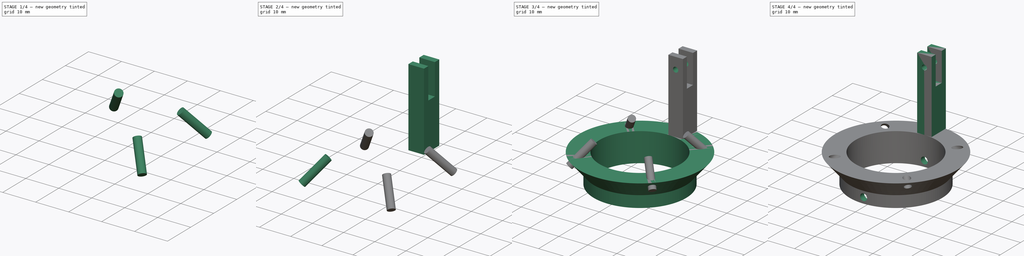
[diagram: build sequence overview — one tinted view per stage of 4, left to right]
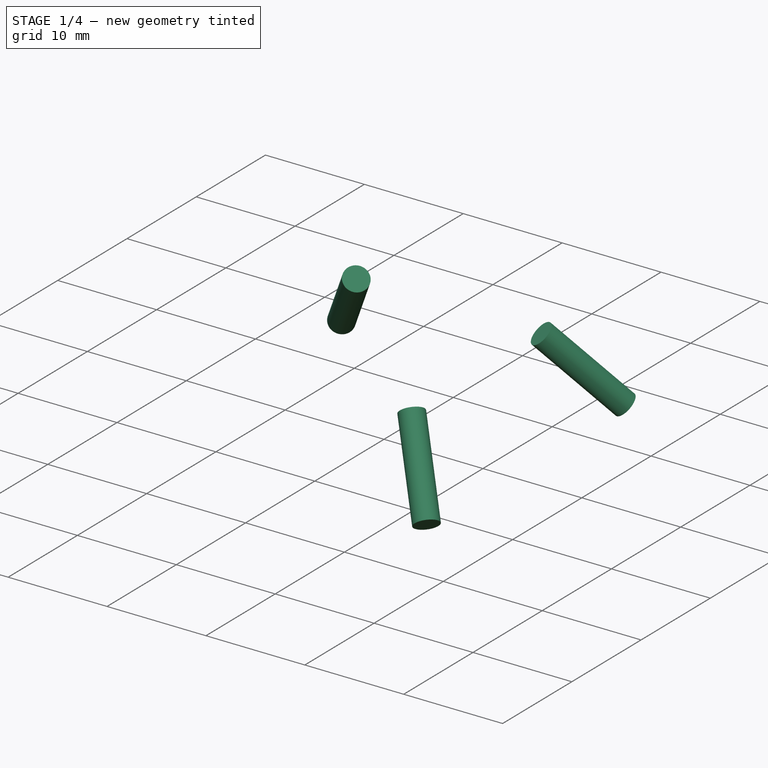
[diagram: stage 1 of 4 — iso view after this stage's code; geometry added in this stage tinted green]
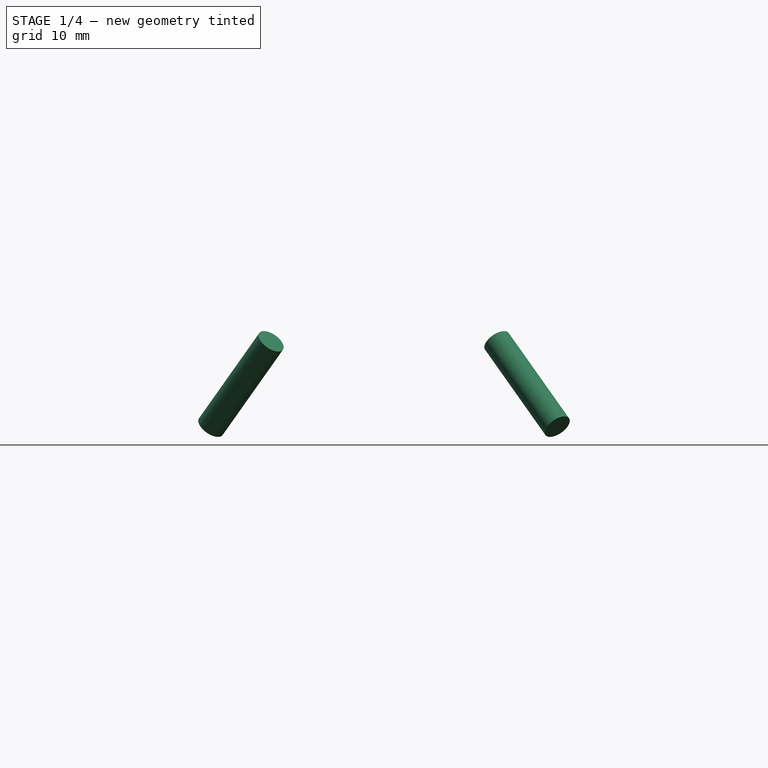
[diagram: stage 1 of 4 — front view after this stage's code; geometry added in this stage tinted green]
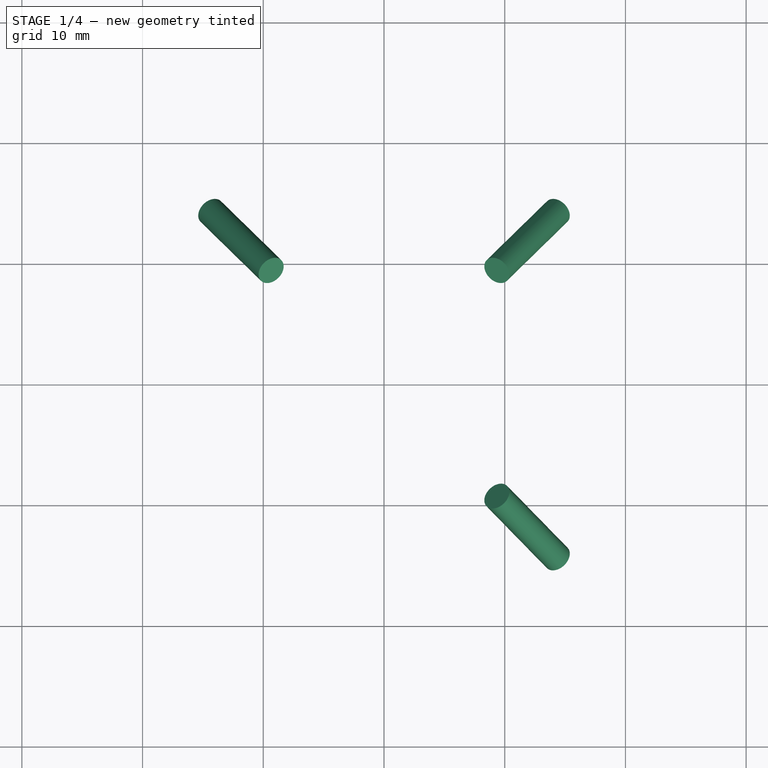
[diagram: stage 1 of 4 — top view after this stage's code; geometry added in this stage tinted green]
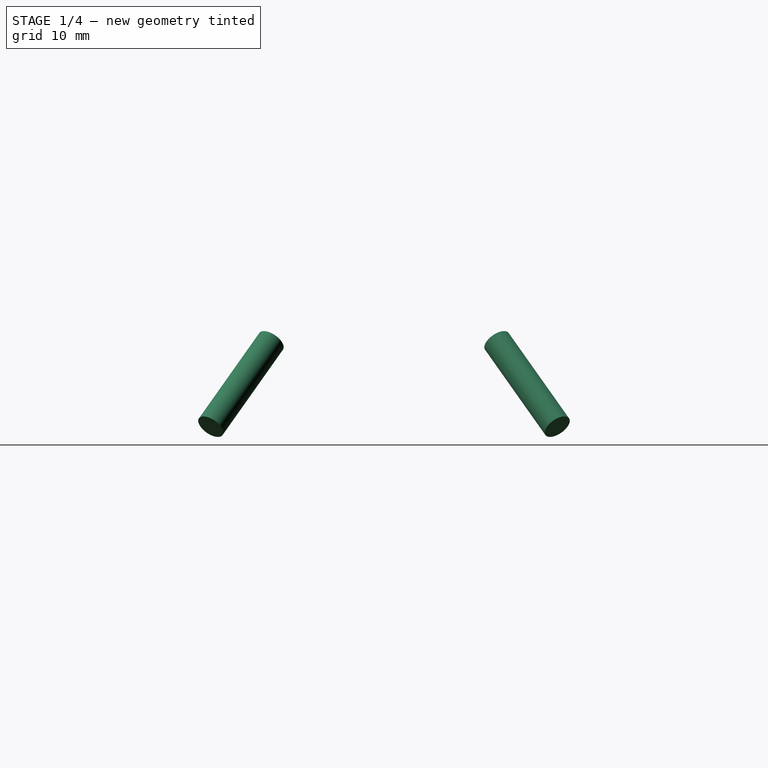
[diagram: stage 1 of 4 — right view after this stage's code; geometry added in this stage tinted green]
FCSTD DOCUMENT  (FreeCAD 0.18R4 (GitTag))
Label: holder4
License: All rights reserved
LicenseURL: http://en.wikipedia.org/wiki/All_rights_reserved
objects: Sketcher::SketchObject×4, Part::Cylinder×4, PartDesign::Pocket×2, PartDesign::Body×2, PartDesign::Revolution×1, PartDesign::Pad×1, Part::Fuse×1, Part::MultiFuse×1, Part::Cut×1
note: 21 computed .brp shape members not serialized (recipe doc carries the construction recipe); baked Part::Feature solids carry a one-line shape summary decoded from their .brp

FEATURE [Part::Cylinder] Cylinder001
  Angle = 360
  AttacherType = Attacher::AttachEngine3D
  Height = 10
  Placement = pos=(14.3492,-14.3492,7.29289) rot=(-0.678598,-0.281085,0.678598;1.09606rad)
  Radius = 1.2
FEATURE [Part::Cylinder] Cylinder002
  Angle = 360
  AttacherType = Attacher::AttachEngine3D
  Height = 10
  Placement = pos=(14.3492,14.3492,7.29289) rot=(0.678598,-0.281085,-0.678598;1.09606rad)
  Radius = 1.2
FEATURE [Part::Cylinder] Cylinder003
  Angle = 360
  AttacherType = Attacher::AttachEngine3D
  Height = 10
  Placement = pos=(-14.3492,14.3492,7.29289) rot=(0.678598,0.281085,0.678598;1.09606rad)
  Radius = 1.2
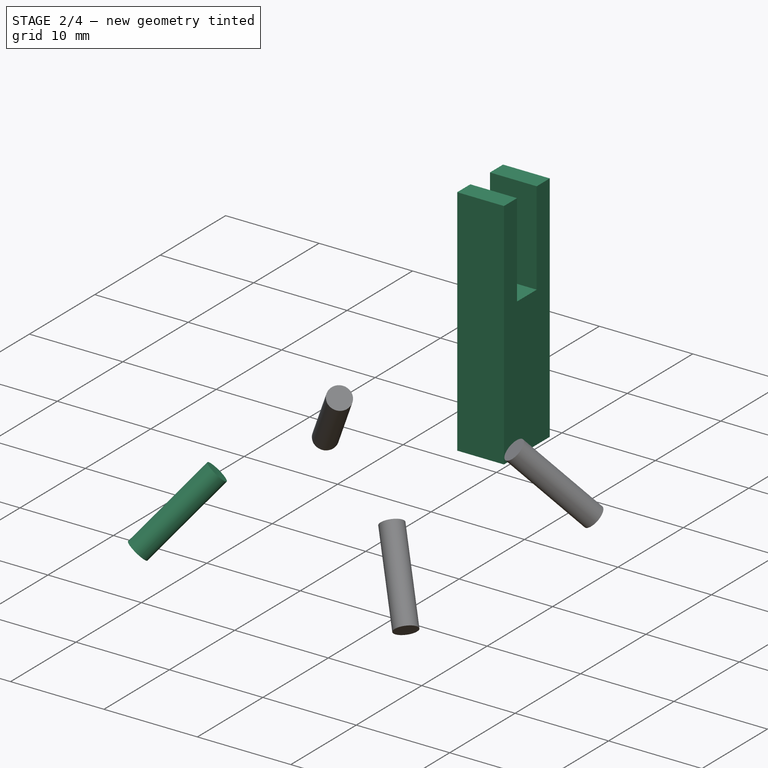
[diagram: stage 2 of 4 — iso view after this stage's code; geometry added in this stage tinted green]
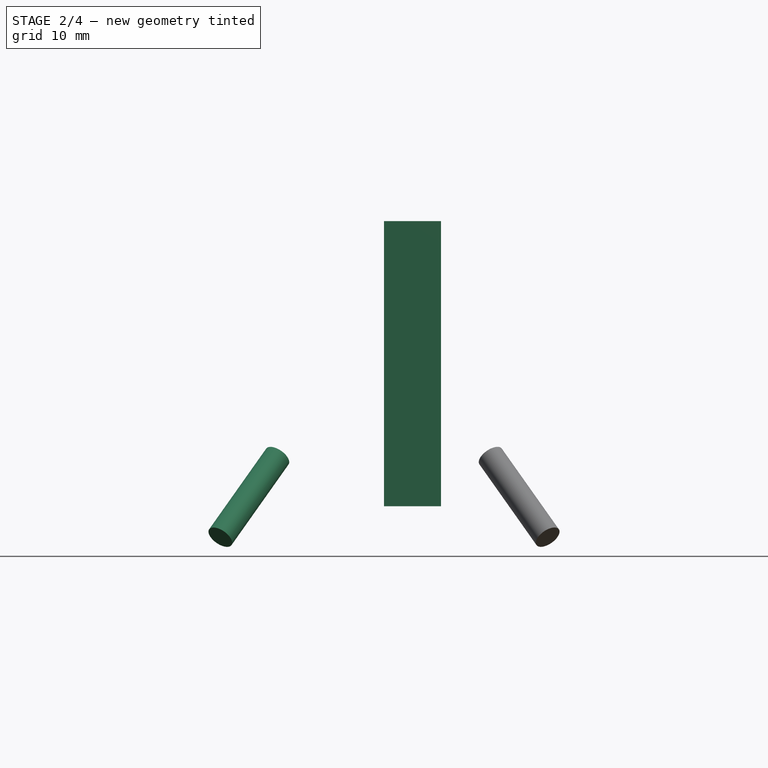
[diagram: stage 2 of 4 — front view after this stage's code; geometry added in this stage tinted green]
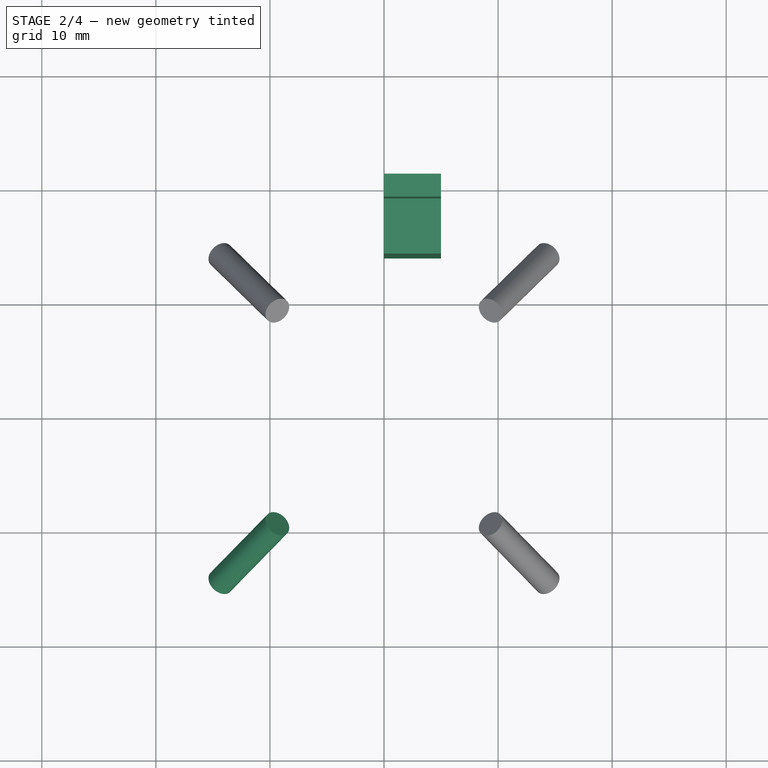
[diagram: stage 2 of 4 — top view after this stage's code; geometry added in this stage tinted green]
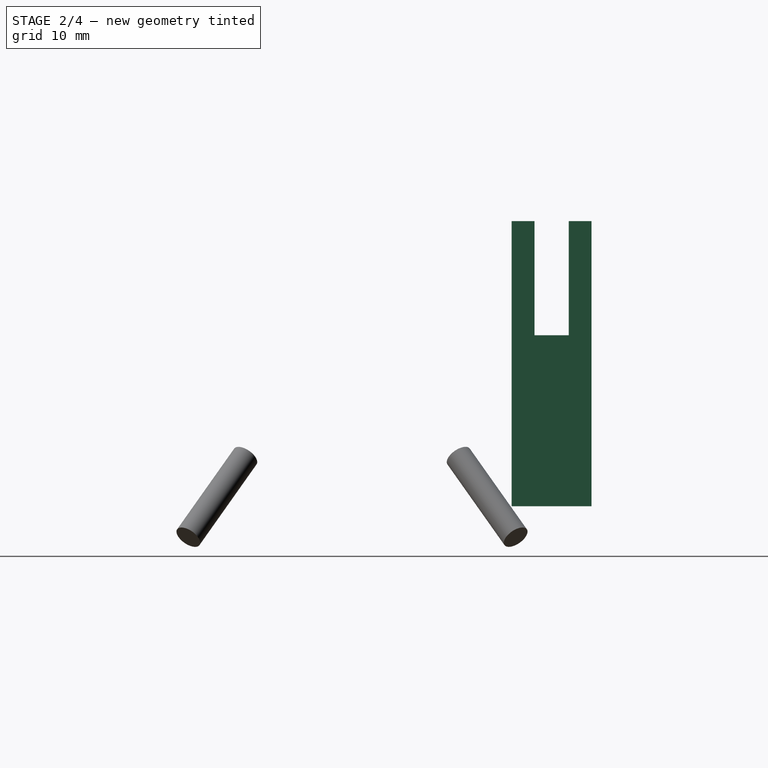
[diagram: stage 2 of 4 — right view after this stage's code; geometry added in this stage tinted green]
FEATURE [PartDesign::Body] Body
  Group = -> [Sketch,Revolution,Sketch001,Pocket]
  Origin = -> Origin
  Tip = -> Pocket
FEATURE [Sketcher::SketchObject] Sketch002
  MapMode = 5
  Placement = pos=(0,0,0) rot=(0.57735,0.57735,0.57735;2.0944rad)
  Support = -> [YZ_Plane001]
  sketch-geometry (8):
    g0: LineSegment StartX=14 StartY=10 StartZ=0 EndX=14 EndY=35 EndZ=0
    g1: LineSegment StartX=14 StartY=35 StartZ=0 EndX=16 EndY=35 EndZ=0
    g2: LineSegment StartX=16 StartY=35 StartZ=0 EndX=16 EndY=25 EndZ=0
    g3: LineSegment StartX=16 StartY=25 StartZ=0 EndX=19 EndY=25 EndZ=0
    g4: LineSegment StartX=19 StartY=25 StartZ=0 EndX=19 EndY=35 EndZ=0
    g5: LineSegment StartX=19 StartY=35 StartZ=0 EndX=21 EndY=35 EndZ=0
    g6: LineSegment StartX=21 StartY=35 StartZ=0 EndX=21 EndY=10 EndZ=0
    g7: LineSegment StartX=21 StartY=10 StartZ=0 EndX=14 EndY=10 EndZ=0
  constraints (24):
    c: Coincident(g0,g1)
    c: Coincident(g1,g2)
    c: Coincident(g2,g3)
    c: Coincident(g3,g4)
    c: Coincident(g4,g5)
    c: Coincident(g5,g6)
    c: Coincident(g6,g7)
    c: Coincident(g7,g0)
    c: Vertical(g0)
    c: Vertical(g2)
    c: Vertical(g4)
    c: Vertical(g6)
    c: Horizontal(g5)
    c: Horizontal(g3)
    c: Horizontal(g1)
    c: Horizontal(g7)
    c: Equal(g6,g0)
    c: DistanceY(g6,g6) = 25
    c: DistanceY(g4,g4) = 10
    c: Equal(g1,g5)
    c: DistanceX(g5,g5) = 2
    c: DistanceX(g3,g3) = 3
    c: DistanceY(g-1,g0) = 10
    c: DistanceX(g-1,g6) = 21
FEATURE [PartDesign::Pad] Pad
  Length = 5
  Length2 = 100
  Placement = pos=(0,0,0) rot=(0.57735,0.57735,0.57735;2.0944rad)
  Profile = -> Sketch002
  Type = 0
FEATURE [Part::Cylinder] Cylinder
  Angle = 360
  AttacherType = Attacher::AttachEngine3D
  Height = 10
  Placement = pos=(-14.3492,-14.3492,7.29289) rot=(-0.678598,0.281085,-0.678598;1.09606rad)
  Radius = 1.2
FEATURE [Part::MultiFuse] Fusion001
  Shapes = -> [Cylinder,Cylinder001,Cylinder002,Cylinder003]
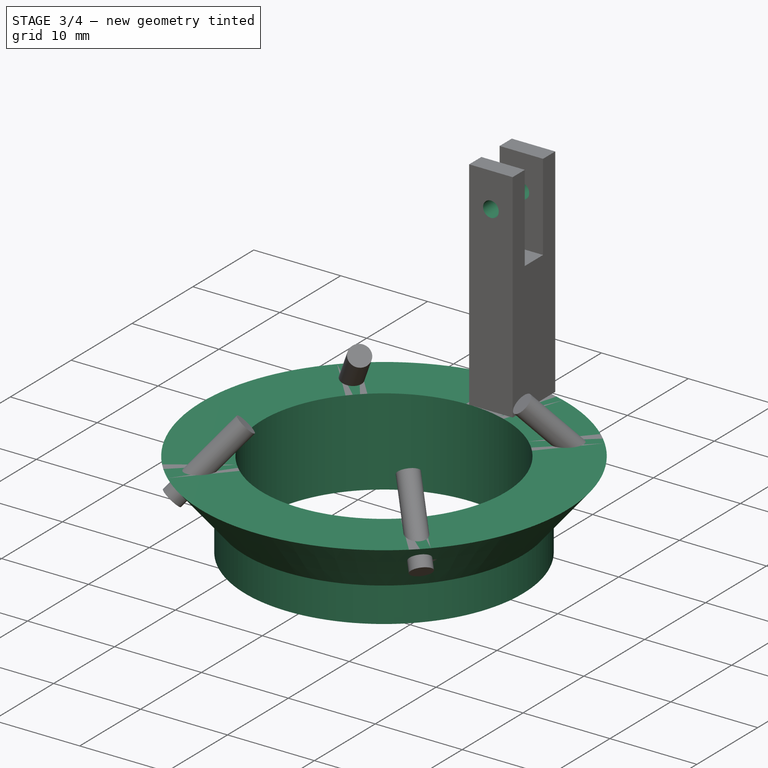
[diagram: stage 3 of 4 — iso view after this stage's code; geometry added in this stage tinted green]
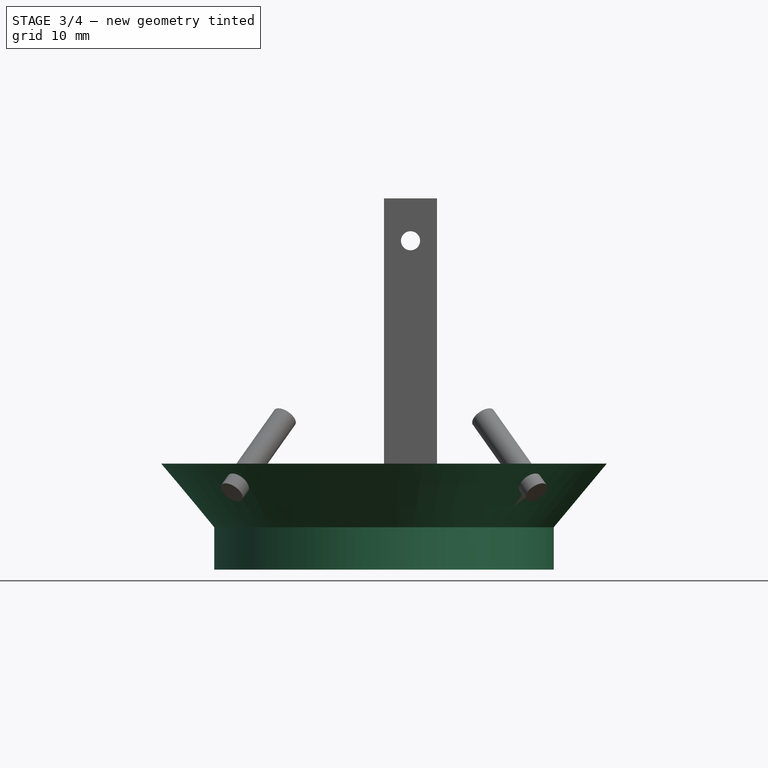
[diagram: stage 3 of 4 — front view after this stage's code; geometry added in this stage tinted green]
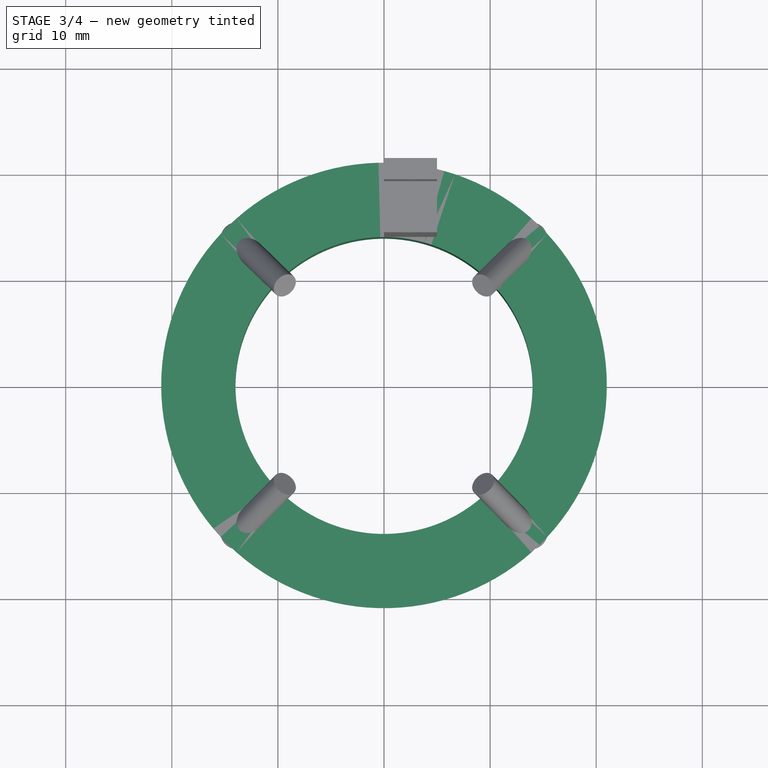
[diagram: stage 3 of 4 — top view after this stage's code; geometry added in this stage tinted green]
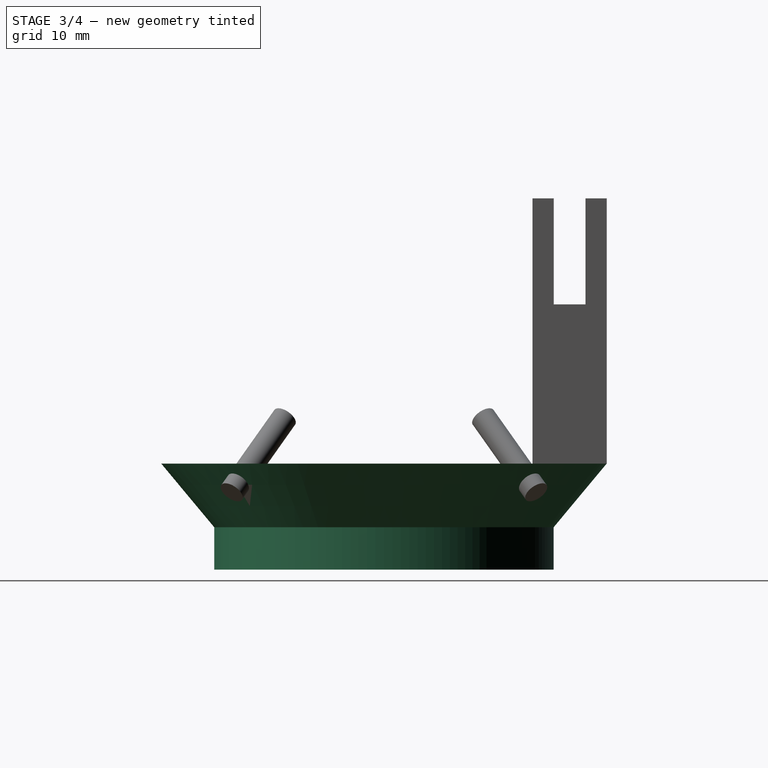
[diagram: stage 3 of 4 — right view after this stage's code; geometry added in this stage tinted green]
FEATURE [Sketcher::SketchObject] Sketch
  MapMode = 5
  Placement = pos=(0,0,0) rot=(1,0,0;1.5708rad)
  Support = -> [XZ_Plane]
  sketch-geometry (5):
    g0: LineSegment StartX=16 StartY=4 StartZ=0 EndX=16 EndY=0 EndZ=0
    g1: LineSegment StartX=16 StartY=0 StartZ=0 EndX=14 EndY=0 EndZ=0
    g2: LineSegment StartX=14 StartY=0 StartZ=0 EndX=14 EndY=10 EndZ=0
    g3: LineSegment StartX=14 StartY=10 StartZ=0 EndX=21 EndY=10 EndZ=0
    g4: LineSegment StartX=21 StartY=10 StartZ=0 EndX=16 EndY=4 EndZ=0
  constraints (15):
    c: Coincident(g0,g1)
    c: Coincident(g1,g2)
    c: Horizontal(g1)
    c: Vertical(g0)
    c: Vertical(g2)
    c: DistanceX(g1,g1) = 2
    c: DistanceY(g2,g2) = 10
    c: Horizontal(g1,g-1)
    c: DistanceX(g-1,g1) = 14
    c: DistanceY(g0,g0) = 4
    c: Coincident(g3,g4)
    c: Coincident(g2,g3)
    c: Coincident(g0,g4)
    c: Horizontal(g3)
    c: DistanceX(g3,g3) = 7
FEATURE [PartDesign::Revolution] Revolution
  Angle = 360
  Axis = (0,-2e-16,1)
  Base = (0,0,0)
  Placement = pos=(0,0,0) rot=(1,0,0;1.5708rad)
  Profile = -> Sketch
  ReferenceAxis = -> Sketch [V_Axis]
  Reversed = true
FEATURE [Sketcher::SketchObject] Sketch003
  ExternalGeometry = -> [Pad]
  MapMode = 5
  Placement = pos=(6.2e-15,14,-4.7e-15) rot=(-0.57735,-0.57735,0.57735;4.18879rad)
  Support = -> [Pad]
  sketch-geometry (1):
    g0: Circle CenterX=-31 CenterY=2.5 CenterZ=0 NormalX=0 NormalY=0 NormalZ=1 AngleXU=0 Radius=0.9
  constraints (3):
    c: Radius(g0) = 0.9
    c: DistanceX(g-3,g0) = 4
    c: DistanceY(g-3,g0) = 2.5
FEATURE [PartDesign::Pocket] Pocket001
  BaseFeature = -> Pad
  Length = 5
  Length2 = 100
  Placement = pos=(0,0,0) rot=(0.57735,0.57735,0.57735;2.0944rad)
  Profile = -> Sketch003
  Type = 1
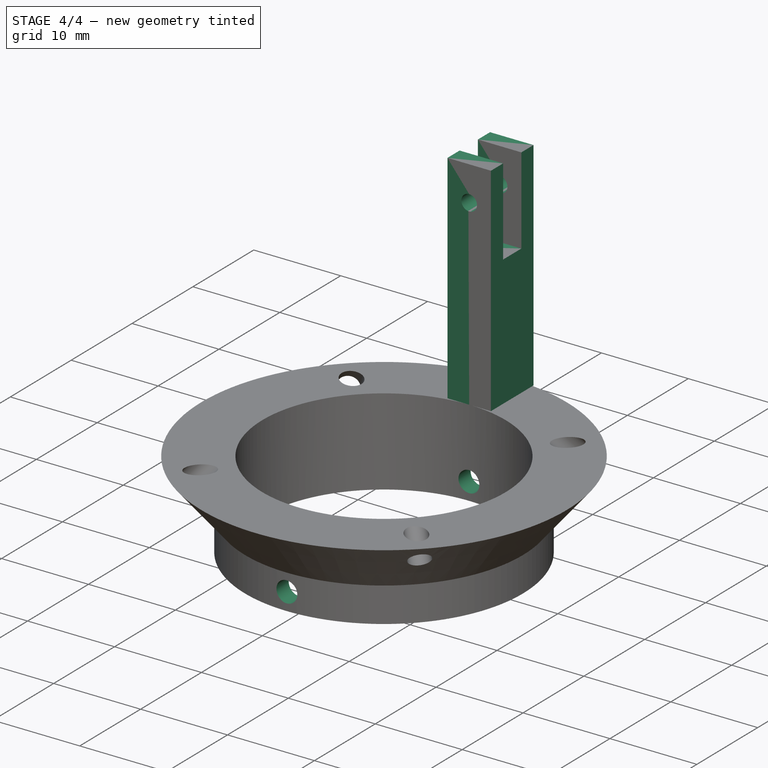
[diagram: stage 4 of 4 — iso view after this stage's code; geometry added in this stage tinted green]
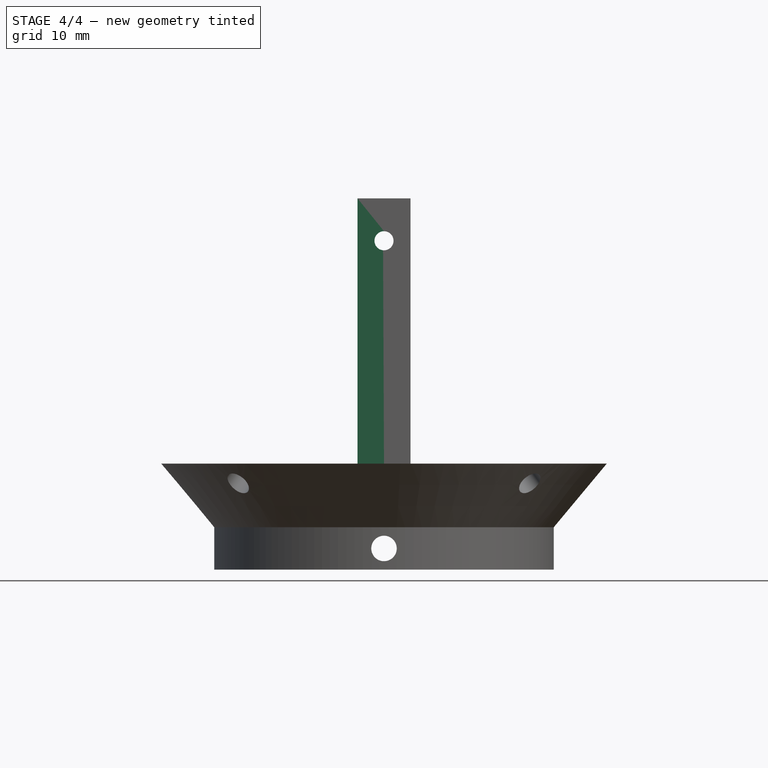
[diagram: stage 4 of 4 — front view after this stage's code; geometry added in this stage tinted green]
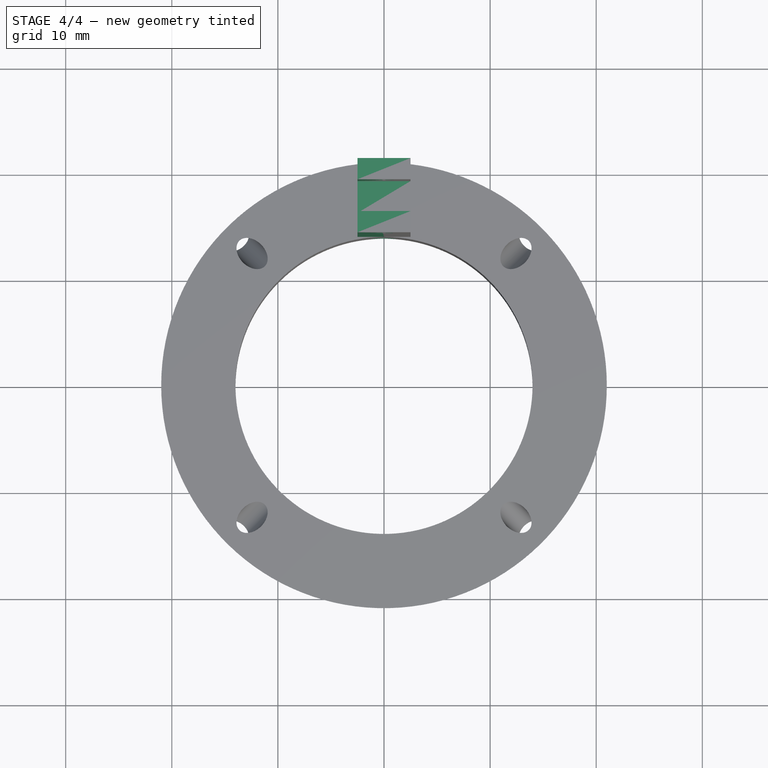
[diagram: stage 4 of 4 — top view after this stage's code; geometry added in this stage tinted green]
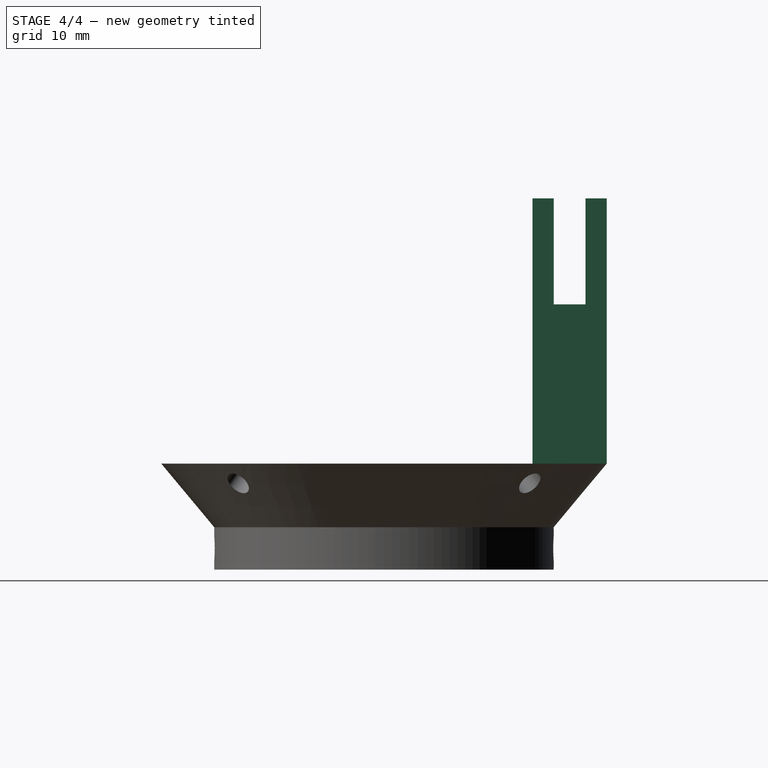
[diagram: stage 4 of 4 — right view after this stage's code; geometry added in this stage tinted green]
FEATURE [Sketcher::SketchObject] Sketch001
  AttachmentOffset = pos=(0,0,17) rot=(0,0,1;0rad)
  MapMode = 5
  Placement = pos=(0,-17,4e-15) rot=(1,0,0;1.5708rad)
  sketch-geometry (1):
    g0: Circle CenterX=0 CenterY=2 CenterZ=0 NormalX=0 NormalY=0 NormalZ=1 AngleXU=0 Radius=1.2
  constraints (3):
    c: Vertical(g0,g-1)
    c: Radius(g0) = 1.2
    c: DistanceY(g-1,g0) = 2
FEATURE [PartDesign::Pocket] Pocket
  BaseFeature = -> Revolution
  Length = 5
  Length2 = 100
  Placement = pos=(0,0,0) rot=(1,0,0;1.5708rad)
  Profile = -> Sketch001
  Type = 1
FEATURE [PartDesign::Body] Body001
  Group = -> [Sketch002,Pad,Sketch003,Pocket001]
  Origin = -> Origin001
  Placement = pos=(-2.5,0,0) rot=(0,0,1;0rad)
  Tip = -> Pocket001
FEATURE [Part::Fuse] Fusion
  Base = -> Body
  Tool = -> Body001
FEATURE [Part::Cut] Cut
  Base = -> Fusion
  Tool = -> Fusion001
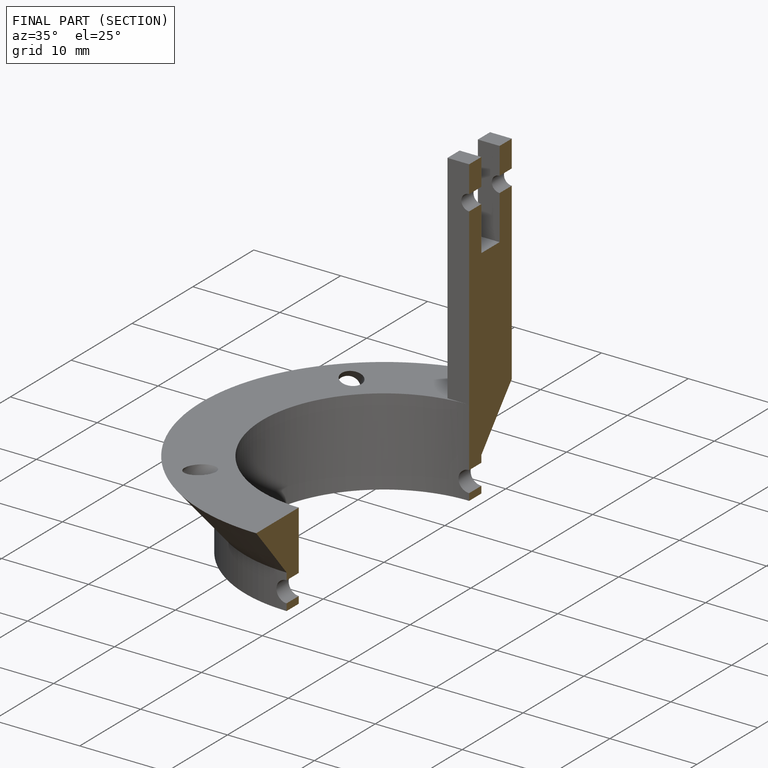
[diagram: finished part — half-section view (interior)]
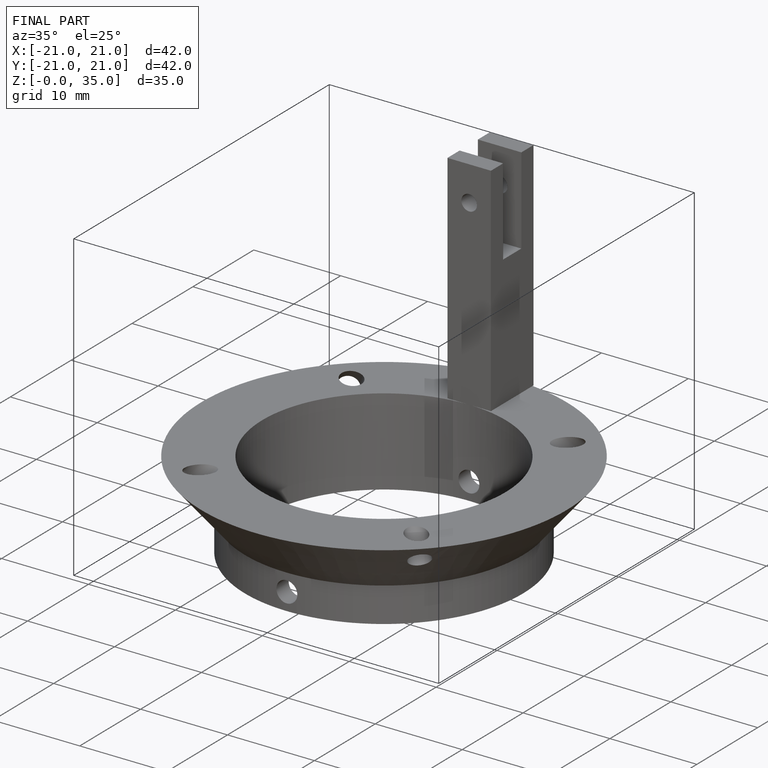
[diagram: finished part — iso view with bounding-box wireframe]
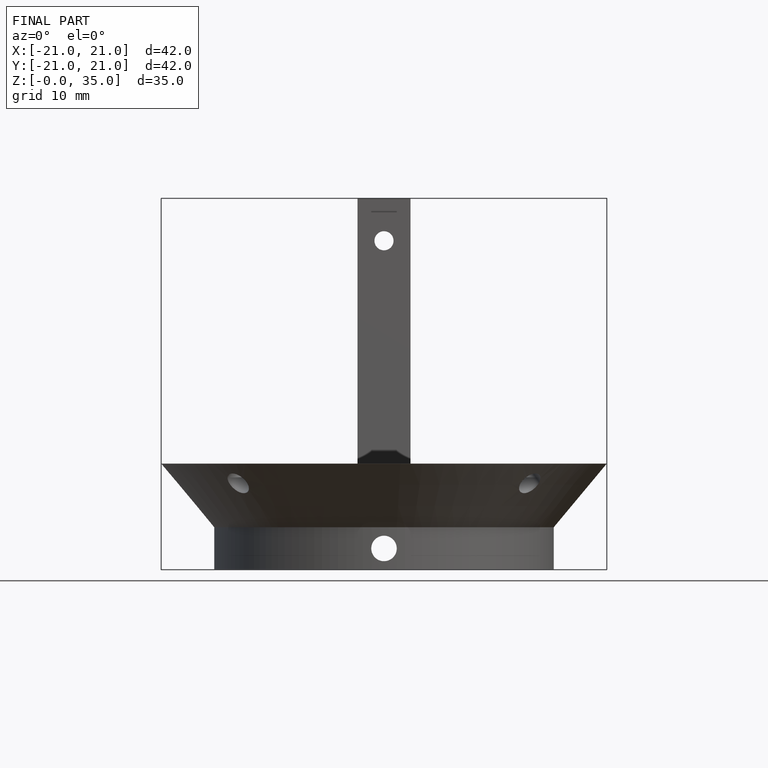
[diagram: finished part — front view with bounding-box wireframe]
